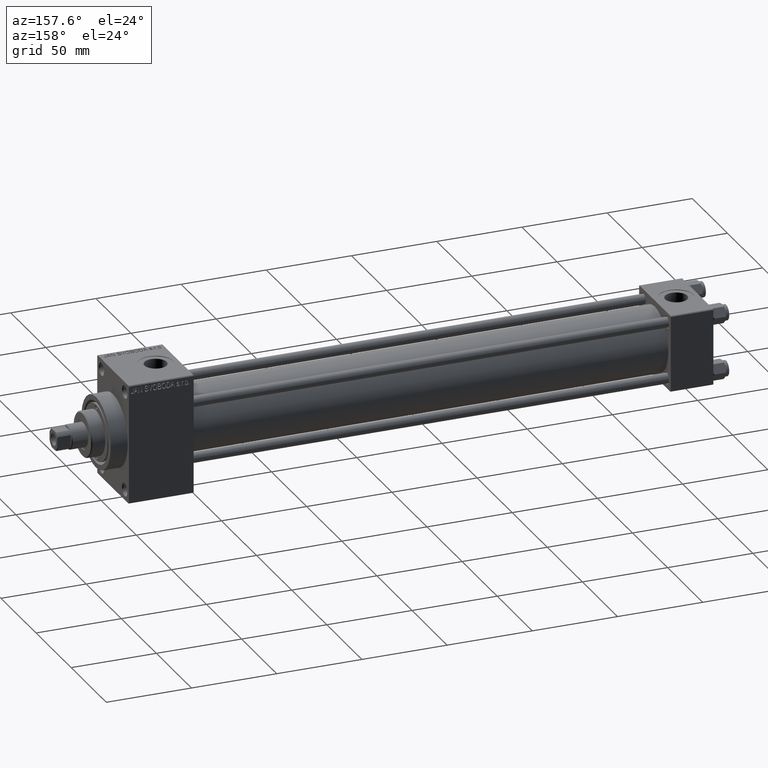
[diagram: clean part render]
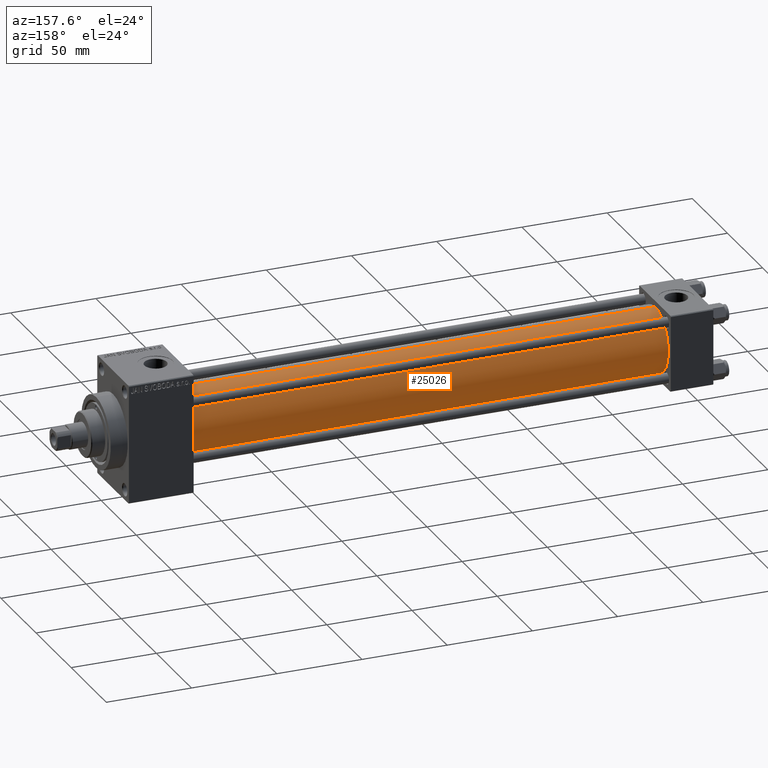
[diagram: same view with one face highlighted and labeled with its STEP entity id]
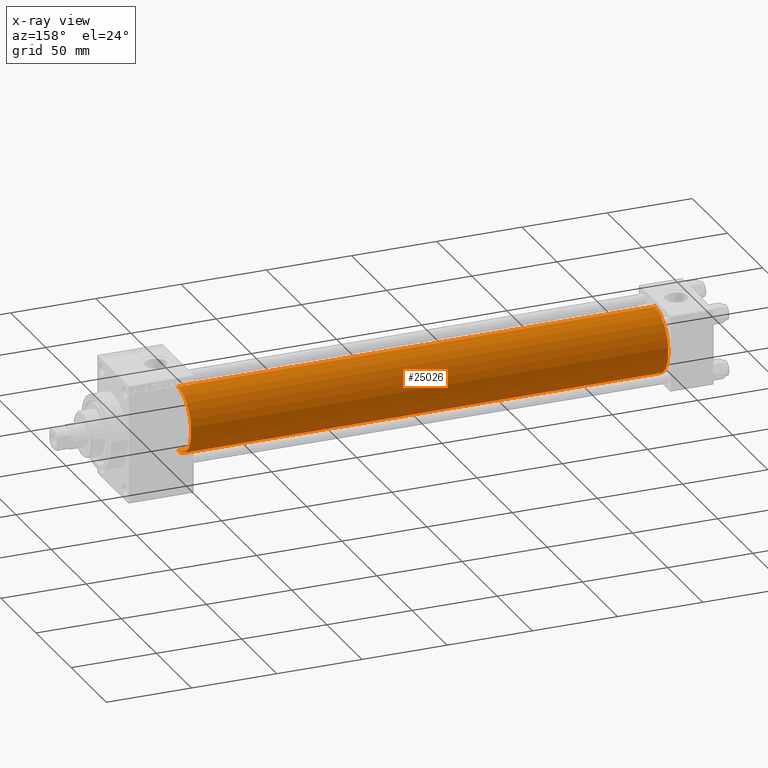
[diagram: x-ray of the same camera — body ghosted, the highlighted face saturated]
A machine part, auxiliary view. The second image highlights one B-rep face of the part: STEP entity #25026.
The next image is the same camera in x-ray: the body ghosted, the highlighted face saturated — about 0% of this face is hidden behind the body in this view.
In plain terms, the highlighted cylindrical surface (edge-blend (fillet) strip) has radius 19 mm, axis along (-1, -0, -0).
Its self-contained STEP definition (entity closure, byte-faithful):
#668 = CARTESIAN_POINT ( 'NONE',  ( 305.0000000000000568, -2.602085213965210642E-15, 19.00000000000000000 ) ) ;
#895 = CARTESIAN_POINT ( 'NONE',  ( 305.0000000000000568, -2.602085213965210642E-15, 0.000000000000000000 ) ) ;
#1314 = CARTESIAN_POINT ( 'NONE',  ( 305.0000000000000568, -2.752562955852396712E-16, -19.00000000000000000 ) ) ;
#1515 = CIRCLE ( 'NONE', #22947, 19.00000000000000000 ) ;
#1933 = EDGE_LOOP ( 'NONE', ( #24628, #44116, #45634, #7693 ) ) ;
#2111 = VERTEX_POINT ( 'NONE', #668 ) ;
#2314 = CARTESIAN_POINT ( 'NONE',  ( 305.0000000000000568, -2.602085213965210642E-15, 0.000000000000000000 ) ) ;
#3840 = VECTOR ( 'NONE', #8739, 1000.000000000000000 ) ;
#6059 = VERTEX_POINT ( 'NONE', #28250 ) ;
#7503 = CARTESIAN_POINT ( 'NONE',  ( 25.00000000000002132, -2.752562955852396712E-16, -19.00000000000000000 ) ) ;
#7693 = ORIENTED_EDGE ( 'NONE', *, *, #33187, .F. ) ;
#8640 = CARTESIAN_POINT ( 'NONE',  ( 305.0000000000000568, -2.602085213965210642E-15, 19.00000000000000000 ) ) ;
#8703 = DIRECTION ( 'NONE',  ( 1.000000000000000000, -0.000000000000000000, 0.000000000000000000 ) ) ;
#8739 = DIRECTION ( 'NONE',  ( -1.000000000000000000, -0.000000000000000000, -0.000000000000000000 ) ) ;
#11923 = DIRECTION ( 'NONE',  ( 1.000000000000000000, 0.000000000000000000, 0.000000000000000000 ) ) ;
#12473 = DIRECTION ( 'NONE',  ( -1.000000000000000000, -0.000000000000000000, -0.000000000000000000 ) ) ;
#18303 = CARTESIAN_POINT ( 'NONE',  ( 25.00000000000002132, -2.602085213965210642E-15, 0.000000000000000000 ) ) ;
#19946 = VERTEX_POINT ( 'NONE', #36582 ) ;
#20277 = DIRECTION ( 'NONE',  ( 0.000000000000000000, 0.000000000000000000, -1.000000000000000000 ) ) ;
#20745 = DIRECTION ( 'NONE',  ( 0.000000000000000000, 0.000000000000000000, 1.000000000000000000 ) ) ;
#20986 = DIRECTION ( 'NONE',  ( -1.000000000000000000, -0.000000000000000000, -0.000000000000000000 ) ) ;
#22947 = AXIS2_PLACEMENT_3D ( 'NONE', #18303, #8703, #23304 ) ;
#23304 = DIRECTION ( 'NONE',  ( 0.000000000000000000, 0.000000000000000000, 1.000000000000000000 ) ) ;
#23470 = LINE ( 'NONE', #8640, #28967 ) ;
#24628 = ORIENTED_EDGE ( 'NONE', *, *, #24991, .F. ) ;
#24803 = AXIS2_PLACEMENT_3D ( 'NONE', #2314, #20986, #20745 ) ;
#24991 = EDGE_CURVE ( 'NONE', #6059, #2111, #43155, .T. ) ;
#25026 = ADVANCED_FACE ( 'NONE', ( #46610 ), #27968, .T. ) ;
#27968 = CYLINDRICAL_SURFACE ( 'NONE', #24803, 19.00000000000000000 ) ;
#28250 = CARTESIAN_POINT ( 'NONE',  ( 305.0000000000000568, -2.752562955852396712E-16, -19.00000000000000000 ) ) ;
#28967 = VECTOR ( 'NONE', #12473, 1000.000000000000000 ) ;
#32781 = VERTEX_POINT ( 'NONE', #7503 ) ;
#33187 = EDGE_CURVE ( 'NONE', #2111, #19946, #23470, .T. ) ;
#36582 = CARTESIAN_POINT ( 'NONE',  ( 25.00000000000002132, -2.602085213965210642E-15, 19.00000000000000000 ) ) ;
#37296 = EDGE_CURVE ( 'NONE', #32781, #19946, #1515, .T. ) ;
#38443 = LINE ( 'NONE', #1314, #3840 ) ;
#38559 = EDGE_CURVE ( 'NONE', #6059, #32781, #38443, .T. ) ;
#40091 = AXIS2_PLACEMENT_3D ( 'NONE', #895, #11923, #20277 ) ;
#43155 = CIRCLE ( 'NONE', #40091, 19.00000000000000000 ) ;
#44116 = ORIENTED_EDGE ( 'NONE', *, *, #38559, .T. ) ;
#45634 = ORIENTED_EDGE ( 'NONE', *, *, #37296, .T. ) ;
#46610 = FACE_OUTER_BOUND ( 'NONE', #1933, .T. ) ;